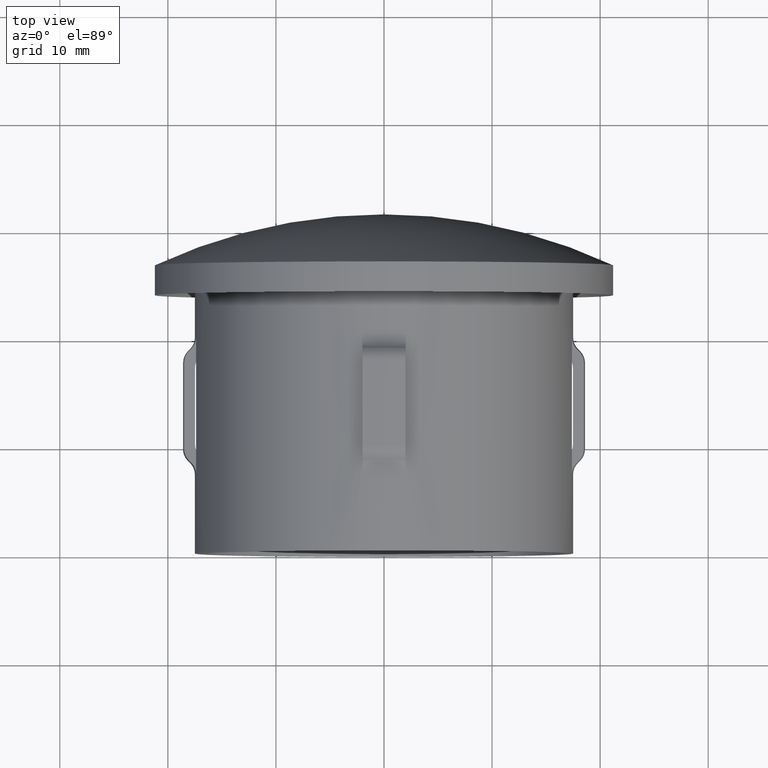
[diagram: clean part render]
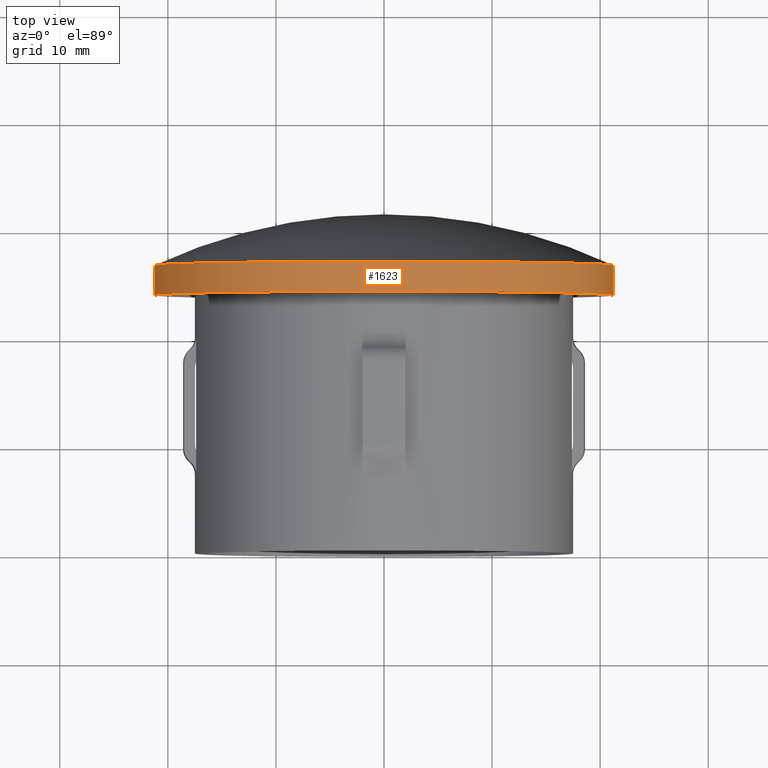
[diagram: same view with one face highlighted and labeled with its STEP entity id]
A machine part, top view. The second image highlights one B-rep face of the part: STEP entity #1623.
In plain terms, the highlighted cylindrical surface (partial cylindrical patch) has radius 21.2 mm, axis along (-0, -1, -0).
Its self-contained STEP definition (entity closure, byte-faithful):
#465 = CIRCLE ( 'NONE', #1034, 21.20000000000001000 ) ;
#768 = CARTESIAN_POINT ( 'NONE',  ( -6.439761623881060800E-015, 26.68310943387175600, 0.0000000000000000000 ) ) ;
#817 = CARTESIAN_POINT ( 'NONE',  ( -21.19999999999990000, 23.90658772472814800, 2.596251214192391900E-015 ) ) ;
#1034 = AXIS2_PLACEMENT_3D ( 'NONE', #768, #3818, #2719 ) ;
#1311 = EDGE_CURVE ( 'NONE', #1333, #12605, #2638, .T. ) ;
#1333 = VERTEX_POINT ( 'NONE', #9168 ) ;
#1416 = VECTOR ( 'NONE', #7110, 1000.000000000000000 ) ;
#1623 = ADVANCED_FACE ( 'NONE', ( #1790 ), #3315, .T. ) ;
#1790 = FACE_OUTER_BOUND ( 'NONE', #9518, .T. ) ;
#1899 = ORIENTED_EDGE ( 'NONE', *, *, #11658, .F. ) ;
#1969 = DIRECTION ( 'NONE',  ( 1.000000000000000000, -2.945756845998349400E-015, 0.0000000000000000000 ) ) ;
#2020 = CARTESIAN_POINT ( 'NONE',  ( -1.450517460529105200E-014, 23.90658772472808400, 0.0000000000000000000 ) ) ;
#2122 = AXIS2_PLACEMENT_3D ( 'NONE', #13099, #6675, #2296 ) ;
#2244 = AXIS2_PLACEMENT_3D ( 'NONE', #2020, #10686, #1969 ) ;
#2296 = DIRECTION ( 'NONE',  ( 1.000000000000000000, -2.945756845998349800E-015, 0.0000000000000000000 ) ) ;
#2638 = LINE ( 'NONE', #4896, #2818 ) ;
#2719 = DIRECTION ( 'NONE',  ( 1.000000000000000000, -2.945756845998350200E-015, 0.0000000000000000000 ) ) ;
#2818 = VECTOR ( 'NONE', #4804, 1000.000000000000000 ) ;
#3112 = ORIENTED_EDGE ( 'NONE', *, *, #12135, .F. ) ;
#3315 = CYLINDRICAL_SURFACE ( 'NONE', #2122, 21.20000000000001400 ) ;
#3818 = DIRECTION ( 'NONE',  ( -2.904862207577519400E-015, -1.000000000000000000, -0.0000000000000000000 ) ) ;
#3940 = CARTESIAN_POINT ( 'NONE',  ( 21.20000000000001400, 28.89999999999993100, 0.0000000000000000000 ) ) ;
#4804 = DIRECTION ( 'NONE',  ( -2.904862207577519400E-015, -1.000000000000000000, -0.0000000000000000000 ) ) ;
#4896 = CARTESIAN_POINT ( 'NONE',  ( -21.20000000000001400, 28.90000000000005900, 2.596251214192390700E-015 ) ) ;
#6675 = DIRECTION ( 'NONE',  ( -2.904862207577519400E-015, -1.000000000000000000, -0.0000000000000000000 ) ) ;
#7110 = DIRECTION ( 'NONE',  ( -2.904862207577519400E-015, -1.000000000000000000, -0.0000000000000000000 ) ) ;
#7749 = VERTEX_POINT ( 'NONE', #13007 ) ;
#7843 = EDGE_CURVE ( 'NONE', #7749, #1333, #465, .T. ) ;
#9168 = CARTESIAN_POINT ( 'NONE',  ( -21.19999999999988600, 26.68310943387181300, 2.596251214192390300E-015 ) ) ;
#9357 = CARTESIAN_POINT ( 'NONE',  ( 21.20000000000001000, 23.90658772472802000, 0.0000000000000000000 ) ) ;
#9517 = VERTEX_POINT ( 'NONE', #9357 ) ;
#9518 = EDGE_LOOP ( 'NONE', ( #10197, #14084, #1899, #3112 ) ) ;
#9648 = CIRCLE ( 'NONE', #2244, 21.20000000000001700 ) ;
#10197 = ORIENTED_EDGE ( 'NONE', *, *, #7843, .T. ) ;
#10686 = DIRECTION ( 'NONE',  ( -2.904862207577519400E-015, -1.000000000000000000, -0.0000000000000000000 ) ) ;
#11658 = EDGE_CURVE ( 'NONE', #9517, #12605, #9648, .T. ) ;
#12135 = EDGE_CURVE ( 'NONE', #7749, #9517, #13180, .T. ) ;
#12605 = VERTEX_POINT ( 'NONE', #817 ) ;
#13007 = CARTESIAN_POINT ( 'NONE',  ( 21.20000000000000300, 26.68310943387169200, 0.0000000000000000000 ) ) ;
#13099 = CARTESIAN_POINT ( 'NONE',  ( 0.0000000000000000000, 28.89999999999999500, 0.0000000000000000000 ) ) ;
#13180 = LINE ( 'NONE', #3940, #1416 ) ;
#14084 = ORIENTED_EDGE ( 'NONE', *, *, #1311, .T. ) ;